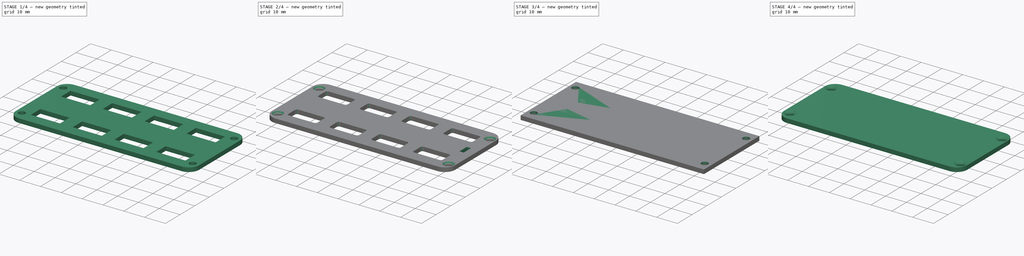
[diagram: build sequence overview — one tinted view per stage of 4, left to right]
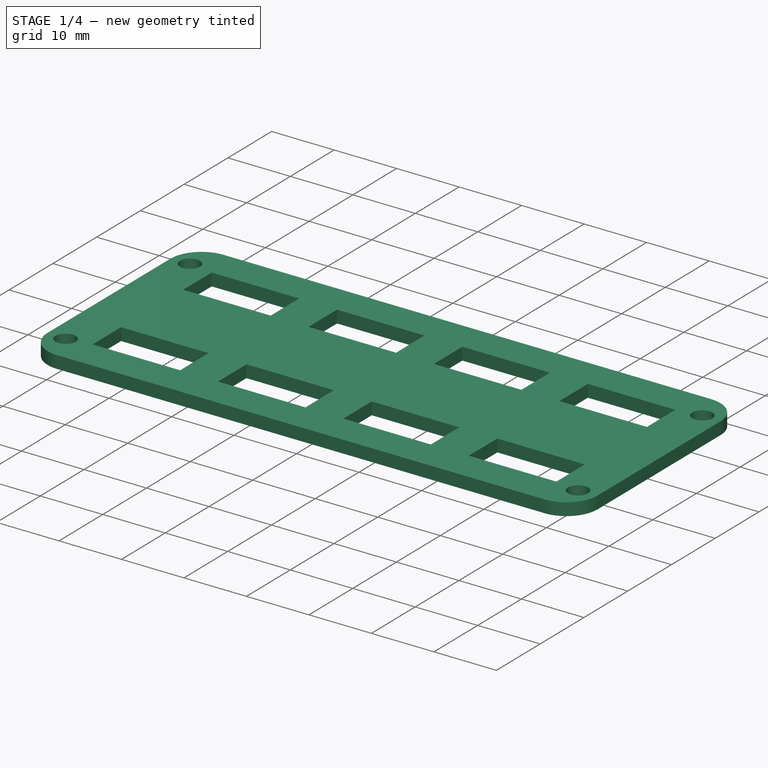
[diagram: stage 1 of 4 — iso view after this stage's code; geometry added in this stage tinted green]
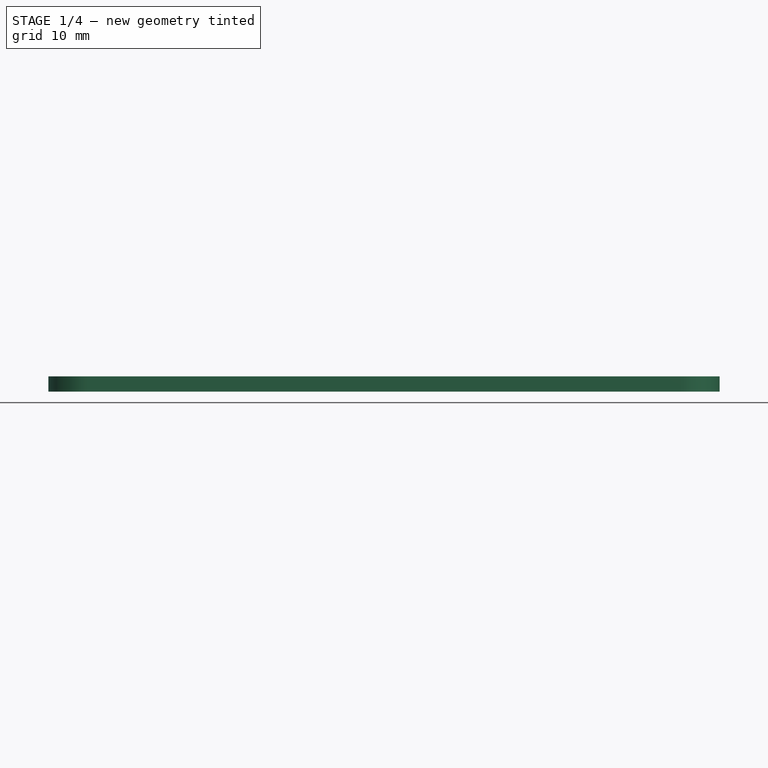
[diagram: stage 1 of 4 — front view after this stage's code; geometry added in this stage tinted green]
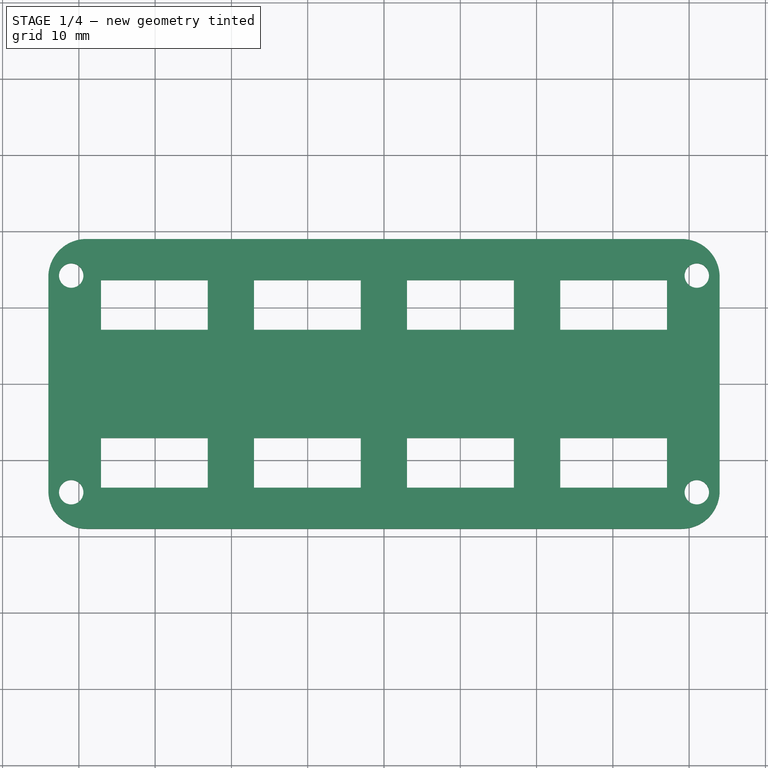
[diagram: stage 1 of 4 — top view after this stage's code; geometry added in this stage tinted green]
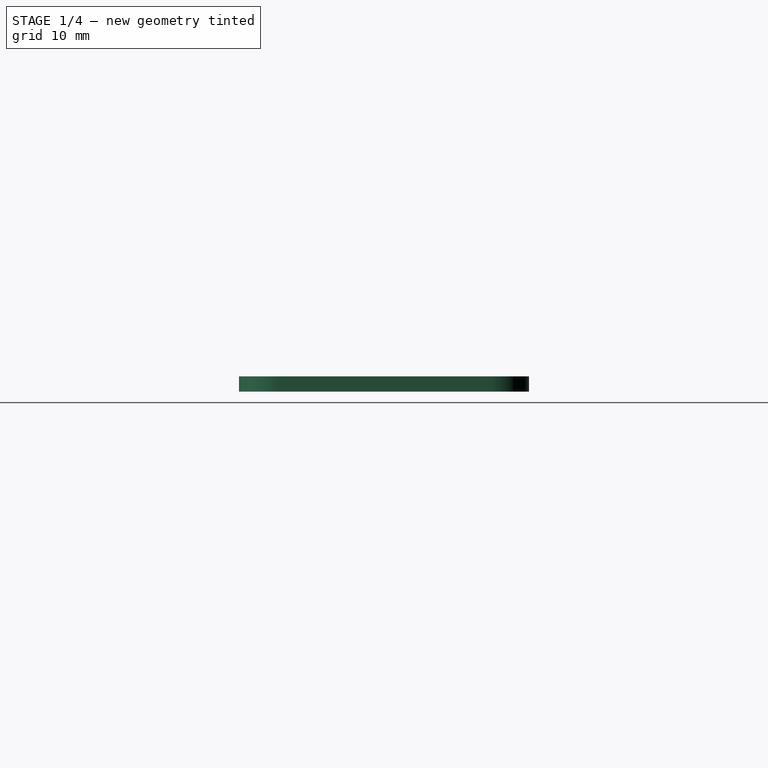
[diagram: stage 1 of 4 — right view after this stage's code; geometry added in this stage tinted green]
FCSTD DOCUMENT  (FreeCAD 0.17R13522 (Git))
Label: 开孔前
License: All rights reserved
LicenseURL: http://en.wikipedia.org/wiki/All_rights_reserved
objects: Sketcher::SketchObject×5, PartDesign::Fillet×5, PartDesign::Mirrored×4, PartDesign::Pocket×3, PartDesign::Pad×2, PartDesign::MultiTransform×2, PartDesign::Chamfer×2, PartDesign::Body×2
note: 30 computed .brp shape members not serialized (recipe doc carries the construction recipe); baked Part::Feature solids carry a one-line shape summary decoded from their .brp

FEATURE [Sketcher::SketchObject] Sketch  label="前"
  MapMode = 5
  Support = -> [XY_Plane]
  sketch-geometry (36):
    g0: LineSegment StartX=-44 StartY=19 StartZ=0 EndX=44 EndY=19 EndZ=0
    g1: LineSegment StartX=44 StartY=19 StartZ=0 EndX=44 EndY=-19 EndZ=0
    g2: LineSegment StartX=44 StartY=-19 StartZ=0 EndX=-44 EndY=-19 EndZ=0
    g3: LineSegment StartX=-44 StartY=-19 StartZ=0 EndX=-44 EndY=19 EndZ=0
    g4: LineSegment StartX=-37.1 StartY=13.6 StartZ=0 EndX=-23.1 EndY=13.6 EndZ=0
    g5: LineSegment StartX=-23.1 StartY=13.6 StartZ=0 EndX=-23.1 EndY=7.1 EndZ=0
    g6: LineSegment StartX=-23.1 StartY=7.1 StartZ=0 EndX=-37.1 EndY=7.1 EndZ=0
    g7: LineSegment StartX=-37.1 StartY=7.1 StartZ=0 EndX=-37.1 EndY=13.6 EndZ=0
    g8: LineSegment StartX=23.1 StartY=-7.1 StartZ=0 EndX=37.1 EndY=-7.1 EndZ=0
    g9: LineSegment StartX=37.1 StartY=-7.1 StartZ=0 EndX=37.1 EndY=-13.6 EndZ=0
    g10: LineSegment StartX=37.1 StartY=-13.6 StartZ=0 EndX=23.1 EndY=-13.6 EndZ=0
    g11: LineSegment StartX=23.1 StartY=-13.6 StartZ=0 EndX=23.1 EndY=-7.1 EndZ=0
    g12: LineSegment StartX=-37.1 StartY=-7.1 StartZ=0 EndX=-23.1 EndY=-7.1 EndZ=0
    g13: LineSegment StartX=-23.1 StartY=-7.1 StartZ=0 EndX=-23.1 EndY=-13.6 EndZ=0
    g14: LineSegment StartX=-23.1 StartY=-13.6 StartZ=0 EndX=-37.1 EndY=-13.6 EndZ=0
    g15: LineSegment StartX=-37.1 StartY=-13.6 StartZ=0 EndX=-37.1 EndY=-7.1 EndZ=0
    g16: LineSegment StartX=23.1 StartY=13.6 StartZ=0 EndX=37.1 EndY=13.6 EndZ=0
    g17: LineSegment StartX=37.1 StartY=13.6 StartZ=0 EndX=37.1 EndY=7.1 EndZ=0
    g18: LineSegment StartX=37.1 StartY=7.1 StartZ=0 EndX=23.1 EndY=7.1 EndZ=0
    g19: LineSegment StartX=23.1 StartY=7.1 StartZ=0 EndX=23.1 EndY=13.6 EndZ=0
    g20: LineSegment StartX=-17.04 StartY=13.6 StartZ=0 EndX=-3.04 EndY=13.6 EndZ=0
    g21: LineSegment StartX=-3.04 StartY=13.6 StartZ=0 EndX=-3.04 EndY=7.1 EndZ=0
    g22: LineSegment StartX=-3.04 StartY=7.1 StartZ=0 EndX=-17.04 EndY=7.1 EndZ=0
    g23: LineSegment StartX=-17.04 StartY=7.1 StartZ=0 EndX=-17.04 EndY=13.6 EndZ=0
    g24: LineSegment StartX=-17.04 StartY=-7.1 StartZ=0 EndX=-3.04 EndY=-7.1 EndZ=0
    g25: LineSegment StartX=-3.04 StartY=-7.1 StartZ=0 EndX=-3.04 EndY=-13.6 EndZ=0
    g26: LineSegment StartX=-3.04 StartY=-13.6 StartZ=0 EndX=-17.04 EndY=-13.6 EndZ=0
    g27: LineSegment StartX=-17.04 StartY=-13.6 StartZ=0 EndX=-17.04 EndY=-7.1 EndZ=0
    g28: LineSegment StartX=3.02 StartY=13.6 StartZ=0 EndX=17.02 EndY=13.6 EndZ=0
    g29: LineSegment StartX=17.02 StartY=13.6 StartZ=0 EndX=17.02 EndY=7.1 EndZ=0
    g30: LineSegment StartX=17.02 StartY=7.1 StartZ=0 EndX=3.02 EndY=7.1 EndZ=0
    g31: LineSegment StartX=3.02 StartY=7.1 StartZ=0 EndX=3.02 EndY=13.6 EndZ=0
    g32: LineSegment StartX=3.02 StartY=-7.1 StartZ=0 EndX=17.02 EndY=-7.1 EndZ=0
    g33: LineSegment StartX=17.02 StartY=-7.1 StartZ=0 EndX=17.02 EndY=-13.6 EndZ=0
    g34: LineSegment StartX=17.02 StartY=-13.6 StartZ=0 EndX=3.02 EndY=-13.6 EndZ=0
    g35: LineSegment StartX=3.02 StartY=-13.6 StartZ=0 EndX=3.02 EndY=-7.1 EndZ=0
  constraints (108):
    c: Coincident(g0,g1)
    c: Coincident(g1,g2)
    c: Coincident(g2,g3)
    c: Coincident(g3,g0)
    c: Horizontal(g0)
    c: Horizontal(g2)
    c: Vertical(g1)
    c: Vertical(g3)
    c: DistanceX(g0,g0) = 88
    c: DistanceY(g3,g3) = 38
    c: Coincident(g4,g5)
    c: Coincident(g5,g6)
    c: Coincident(g6,g7)
    c: Coincident(g7,g4)
    c: Horizontal(g4)
    c: Horizontal(g6)
    c: Vertical(g5)
    c: Vertical(g7)
    c: DistanceY(g7,g7) = 6.5
    c: DistanceX(g4,g4) = 14
    c: Distance(g6,g3) = 6.9
    c: Distance(g-1,g0) = 19
    c: Distance(g-1,g1) = 44
    c: Coincident(g8,g9)
    c: Coincident(g9,g10)
    c: Coincident(g10,g11)
    c: Coincident(g11,g8)
    c: Horizontal(g8)
    c: Horizontal(g10)
    c: Vertical(g9)
    c: Vertical(g11)
    c: Coincident(g12,g13)
    c: Coincident(g13,g14)
    c: Coincident(g14,g15)
    c: Coincident(g15,g12)
    c: Horizontal(g12)
    c: Horizontal(g14)
    c: Vertical(g13)
    c: Vertical(g15)
    c: Coincident(g16,g17)
    c: Coincident(g17,g18)
    c: Coincident(g18,g19)
    c: Coincident(g19,g16)
    c: Horizontal(g16)
    c: Horizontal(g18)
    c: Vertical(g17)
    c: Vertical(g19)
    c: DistanceX(g12,g12) = 14
    c: DistanceY(g15,g15) = 6.5
    c: Distance(g12,g3) = 6.9
    c: Distance(g14,g2) = 5.4
    c: Distance(g4,g0) = 5.4
    c: DistanceX(g16,g16) = 14
    c: DistanceY(g19,g19) = 6.5
    c: DistanceX(g8,g8) = 14
    c: DistanceY(g11,g11) = 6.5
    c: Distance(g9,g2) = 5.4
    c: Distance(g8,g1) = 6.9
    c: Distance(g16,g1) = 6.9
    c: Distance(g16,g0) = 5.4
    c: Coincident(g20,g21)
    c: Coincident(g21,g22)
    c: Coincident(g22,g23)
    c: Coincident(g23,g20)
    c: Horizontal(g20)
    c: Horizontal(g22)
    c: Vertical(g21)
    c: Vertical(g23)
    c: Coincident(g24,g25)
    c: Coincident(g25,g26)
    c: Coincident(g26,g27)
    c: Coincident(g27,g24)
    c: Horizontal(g24)
    c: Horizontal(g26)
    c: Vertical(g25)
    c: Vertical(g27)
    c: Coincident(g28,g29)
    c: Coincident(g29,g30)
    c: Coincident(g30,g31)
    c: Coincident(g31,g28)
    c: Horizontal(g28)
    c: Horizontal(g30)
    c: Vertical(g29)
    c: Vertical(g31)
    c: Coincident(g32,g33)
    c: Coincident(g33,g34)
    c: Coincident(g34,g35)
    c: Coincident(g35,g32)
    c: Horizontal(g32)
    c: Horizontal(g34)
    c: Vertical(g33)
    c: Vertical(g35)
    c: DistanceX(g20,g20) = 14
    c: DistanceX(g24,g24) = 14
    c: DistanceX(g28,g28) = 14
    c: DistanceX(g32,g32) = 14
    c: DistanceY(g23,g23) = 6.5
    c: DistanceY(g27,g27) = 6.5
    c: DistanceY(g31,g31) = 6.5
    c: DistanceY(g35,g35) = 6.5
    c: Distance(g20,g4) = 6.06
    c: Distance(g20,g0) = 5.4
    c: Distance(g26,g2) = 5.4
    c: Distance(g26,g13) = 6.06
    c: Distance(g28,g0) = 5.4
    c: Distance(g28,g20) = 6.06
    c: Distance(g34,g2) = 5.4
    c: Distance(g32,g24) = 6.06
FEATURE [Sketcher::SketchObject] Sketch001  label="后"
  MapMode = 5
  Support = -> [XY_Plane001]
  sketch-geometry (9):
    g0: LineSegment StartX=-44 StartY=19 StartZ=0 EndX=44 EndY=19 EndZ=0
    g1: LineSegment StartX=44 StartY=19 StartZ=0 EndX=44 EndY=-19 EndZ=0
    g2: LineSegment StartX=44 StartY=-19 StartZ=0 EndX=-44 EndY=-19 EndZ=0
    g3: LineSegment StartX=-44 StartY=-19 StartZ=0 EndX=-44 EndY=19 EndZ=0
    g4: Circle CenterX=-34 CenterY=0 CenterZ=0 NormalX=0 NormalY=0 NormalZ=1 AngleXU=0 Radius=4
    g5: LineSegment StartX=-19 StartY=6.75 StartZ=0 EndX=-10 EndY=6.75 EndZ=0
    g6: LineSegment StartX=-10 StartY=6.75 StartZ=0 EndX=-10 EndY=-6.75 EndZ=0
    g7: LineSegment StartX=-10 StartY=-6.75 StartZ=0 EndX=-19 EndY=-6.75 EndZ=0
    g8: LineSegment StartX=-19 StartY=-6.75 StartZ=0 EndX=-19 EndY=6.75 EndZ=0
  constraints (27):
    c: Coincident(g0,g1)
    c: Coincident(g1,g2)
    c: Coincident(g2,g3)
    c: Coincident(g3,g0)
    c: Horizontal(g0)
    c: Horizontal(g2)
    c: Vertical(g1)
    c: Vertical(g3)
    c: DistanceX(g0,g0) = 88
    c: DistanceY(g3,g3) = 38
    c: DistanceY(g-1,g1) = -19
    c: DistanceX(g-2,g0) = -44
    c: Coincident(g5,g6)
    c: Coincident(g6,g7)
    c: Coincident(g7,g8)
    c: Coincident(g8,g5)
    c: Horizontal(g5)
    c: Horizontal(g7)
    c: Vertical(g6)
    c: Vertical(g8)
    c: DistanceY(g8,g8) = 13.5
    c: DistanceX(g5,g5) = 9
    c: Radius(g4) = 4
    c: PointOnObject(g4,g-1)
    c: Distance(g4,g3) = 10
    c: Distance(g4,g8) = 15
    c: DistanceY(g-1,g5) = 6.75
FEATURE [PartDesign::Pad] Pad
  Length = 2
  Length2 = 100
  Profile = -> Sketch
  Type = 0
FEATURE [Sketcher::SketchObject] Sketch002
  ExternalGeometry = -> [Pad]
  MapMode = 5
  Placement = pos=(0,0,2) rot=(0,0,1;0rad)
  Support = -> [Pad]
  sketch-geometry (1):
    g0: Circle CenterX=-41 CenterY=14.2 CenterZ=0 NormalX=0 NormalY=0 NormalZ=1 AngleXU=0 Radius=1.6
  constraints (3):
    c: Radius(g0) = 1.6
    c: Distance(g0,g-4) = 3
    c: Distance(g0,g-3) = 4.8
FEATURE [PartDesign::Pocket] Pocket
  BaseFeature = -> Pad
  Length = 5
  Length2 = 100
  Profile = -> Sketch002
  Type = 1
FEATURE [PartDesign::Mirrored] Mirrored
  MirrorPlane = -> Sketch002 [V_Axis]
FEATURE [PartDesign::Mirrored] Mirrored001
  MirrorPlane = -> Sketch002 [H_Axis]
FEATURE [PartDesign::MultiTransform] MultiTransform
  BaseFeature = -> Pocket
  Originals = -> [Pocket]
  Transformations = -> [Mirrored,Mirrored001]
FEATURE [PartDesign::Fillet] Fillet
  Base = -> MultiTransform [Edge1,Edge5,Edge2,Edge8]
  BaseFeature = -> MultiTransform
  Radius = 5
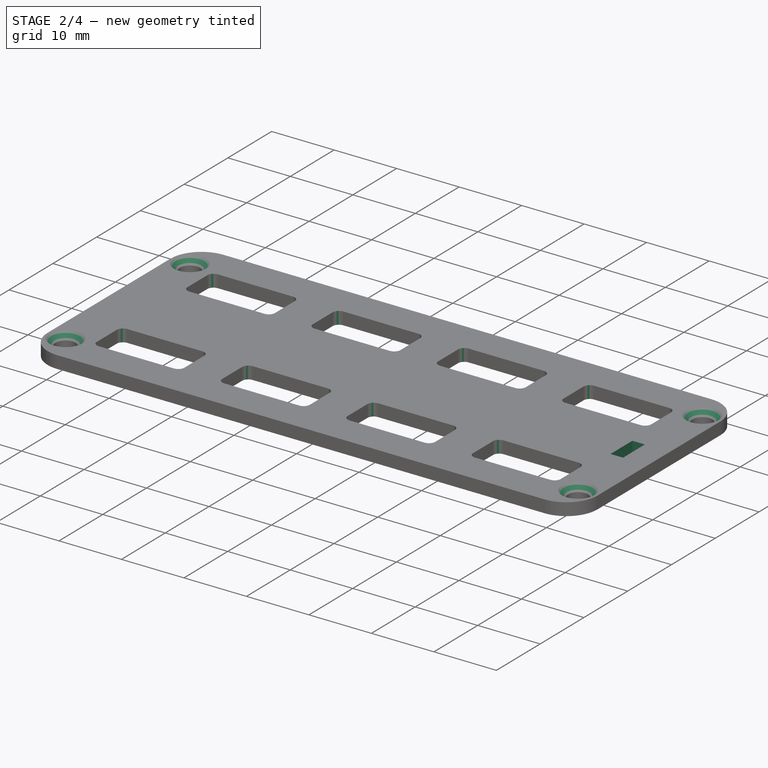
[diagram: stage 2 of 4 — iso view after this stage's code; geometry added in this stage tinted green]
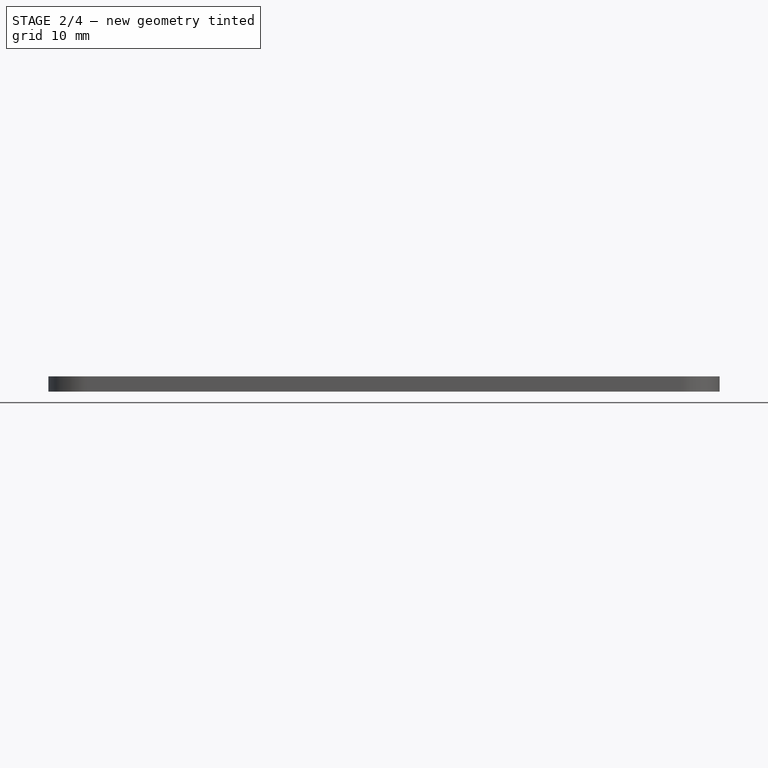
[diagram: stage 2 of 4 — front view after this stage's code; geometry added in this stage tinted green]
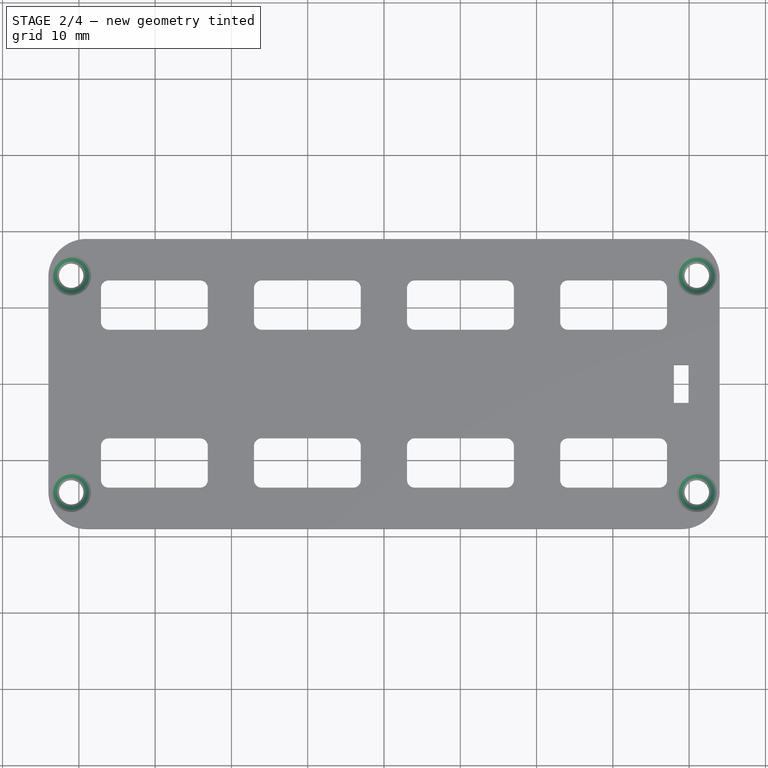
[diagram: stage 2 of 4 — top view after this stage's code; geometry added in this stage tinted green]
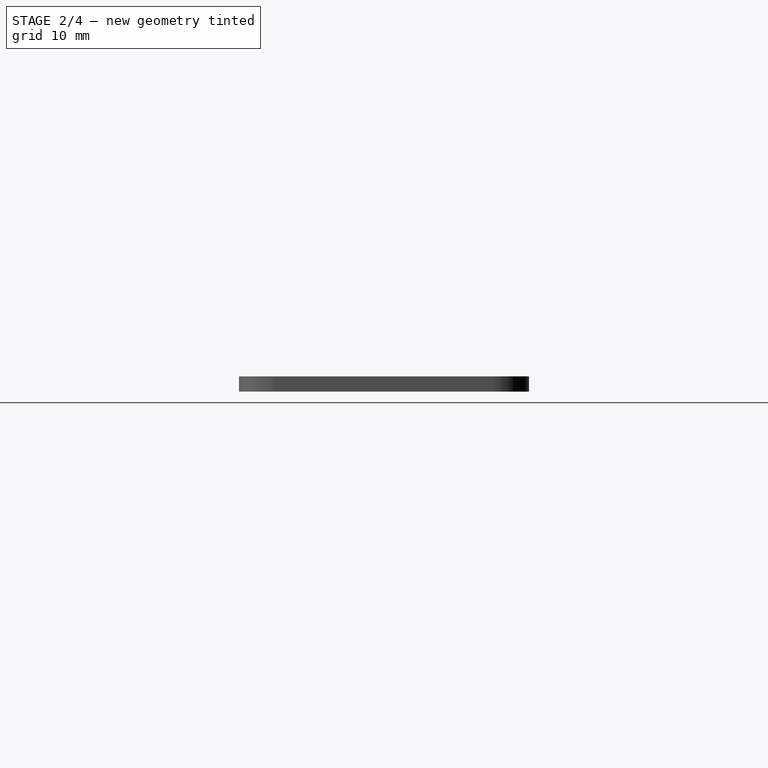
[diagram: stage 2 of 4 — right view after this stage's code; geometry added in this stage tinted green]
FEATURE [PartDesign::Chamfer] Chamfer
  Base = -> Fillet [Edge83,Edge73,Edge82,Edge92]
  BaseFeature = -> Fillet
  Size = 1
FEATURE [PartDesign::Fillet] Fillet003
  Base = -> Chamfer [Edge111,Edge120,Edge119,Edge112,Edge114,Edge116,Edge124,Edge122,Edge80,Edge79,Edge82,Edge84,Edge90,Edge92,Edge88,Edge87,Edge76,Edge72,Edge71,Edge74,Edge66,Edge68,Edge64,Edge63,Edge104,Edge103,Edge106,Edge108,Edge98,Edge100,Edge96,Edge95]
  BaseFeature = -> Chamfer
  Radius = 1
FEATURE [PartDesign::Body] Body001  label="main2"
  Group = -> [Sketch001,Pad001,Sketch003,Pocket001,MultiTransform001,Mirrored002,Mirrored003,Fillet004,Chamfer001]
  Origin = -> Origin001
  Tip = -> Chamfer001
FEATURE [Sketcher::SketchObject] Sketch004
  ExternalGeometry = -> [MultiTransform]
  MapMode = 5
  Placement = pos=(0,0,2) rot=(0,0,1;0rad)
  Support = -> [MultiTransform]
  sketch-geometry (4):
    g0: LineSegment StartX=38 StartY=2.5 StartZ=0 EndX=40 EndY=2.5 EndZ=0
    g1: LineSegment StartX=40 StartY=2.5 StartZ=0 EndX=40 EndY=-2.5 EndZ=0
    g2: LineSegment StartX=40 StartY=-2.5 StartZ=0 EndX=38 EndY=-2.5 EndZ=0
    g3: LineSegment StartX=38 StartY=-2.5 StartZ=0 EndX=38 EndY=2.5 EndZ=0
  constraints (12):
    c: Coincident(g0,g1)
    c: Coincident(g1,g2)
    c: Coincident(g2,g3)
    c: Coincident(g3,g0)
    c: Horizontal(g0)
    c: Horizontal(g2)
    c: Vertical(g1)
    c: Vertical(g3)
    c: DistanceY(g3,g3) = 5
    c: DistanceX(g0,g0) = 2
    c: DistanceY(g-1,g0) = 2.5
    c: Distance(g0,g-3) = 4
FEATURE [PartDesign::Pocket] Pocket002
  BaseFeature = -> Fillet003
  Length = 5
  Length2 = 100
  Profile = -> Sketch004
  Type = 1
FEATURE [PartDesign::Body] Body  label="main1"
  Group = -> [Sketch,Pad,Sketch002,Pocket,MultiTransform,Mirrored,Mirrored001,Fillet,Fillet001,Fillet002,Chamfer,Fillet003,Sketch004,Pocket002]
  Origin = -> Origin
  Tip = -> Pocket002
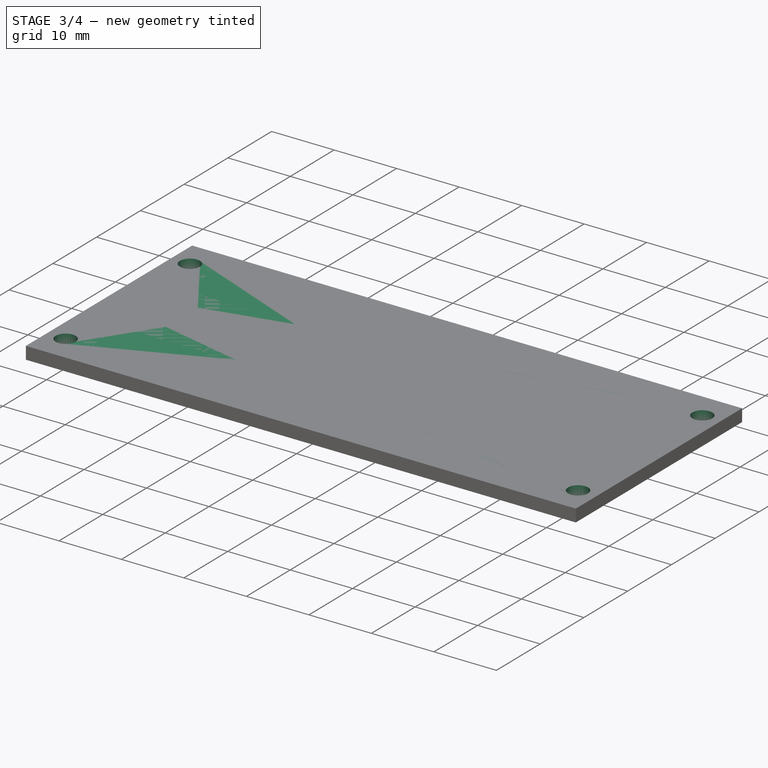
[diagram: stage 3 of 4 — iso view after this stage's code; geometry added in this stage tinted green]
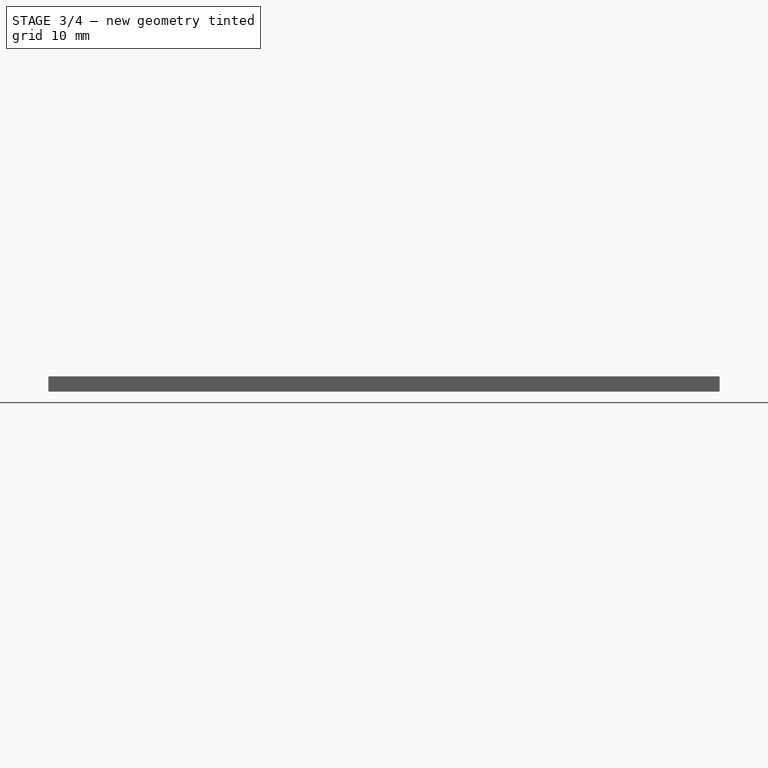
[diagram: stage 3 of 4 — front view after this stage's code; geometry added in this stage tinted green]
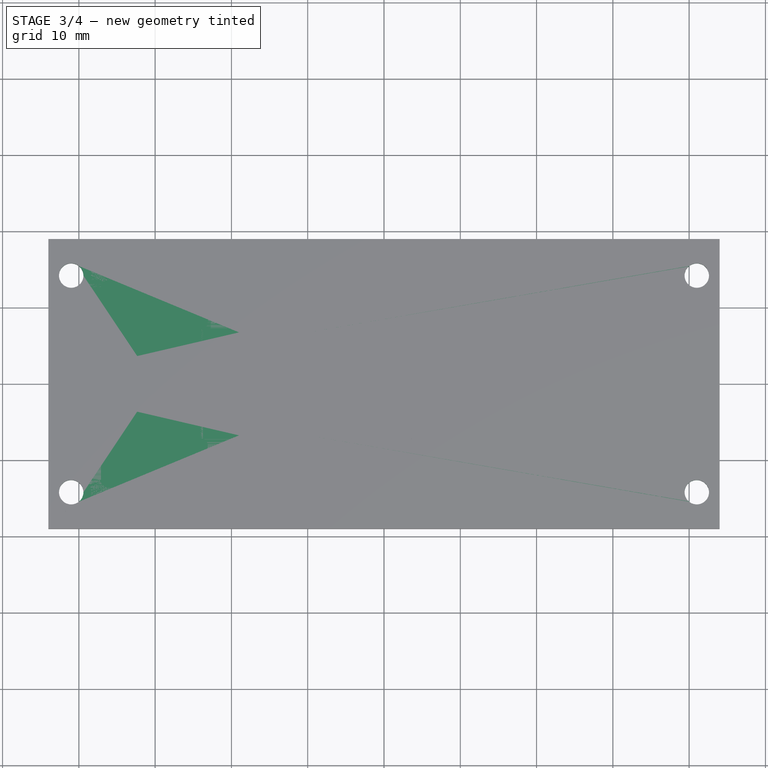
[diagram: stage 3 of 4 — top view after this stage's code; geometry added in this stage tinted green]
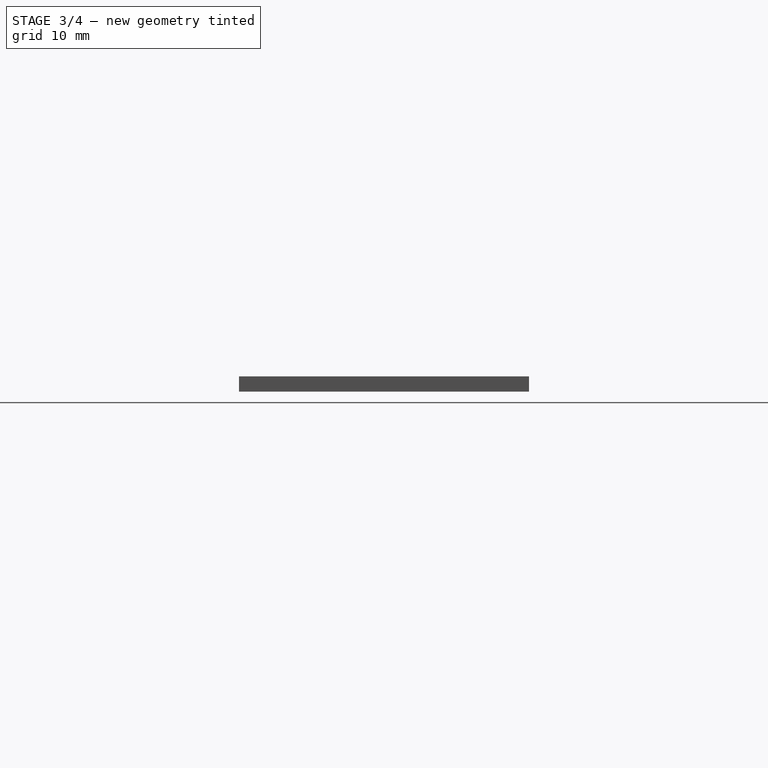
[diagram: stage 3 of 4 — right view after this stage's code; geometry added in this stage tinted green]
FEATURE [PartDesign::Pad] Pad001
  Length = 2
  Length2 = 100
  Profile = -> Sketch001
  Type = 0
FEATURE [Sketcher::SketchObject] Sketch003
  ExternalGeometry = -> [Pad001]
  MapMode = 5
  Placement = pos=(0,0,2) rot=(0,0,1;0rad)
  Support = -> [Pad001]
  sketch-geometry (1):
    g0: Circle CenterX=-41 CenterY=14.2 CenterZ=0 NormalX=0 NormalY=0 NormalZ=1 AngleXU=0 Radius=1.6
  constraints (3):
    c: Radius(g0) = 1.6
    c: Distance(g0,g-3) = 4.8
    c: Distance(g0,g-4) = 3
FEATURE [PartDesign::Pocket] Pocket001
  BaseFeature = -> Pad001
  Length = 5
  Length2 = 100
  Profile = -> Sketch003
  Type = 1
FEATURE [PartDesign::Mirrored] Mirrored002
  MirrorPlane = -> Sketch003 [V_Axis]
FEATURE [PartDesign::Mirrored] Mirrored003
  MirrorPlane = -> Sketch003 [H_Axis]
FEATURE [PartDesign::MultiTransform] MultiTransform001
  BaseFeature = -> Pocket001
  Originals = -> [Pocket001]
  Transformations = -> [Mirrored002,Mirrored003]
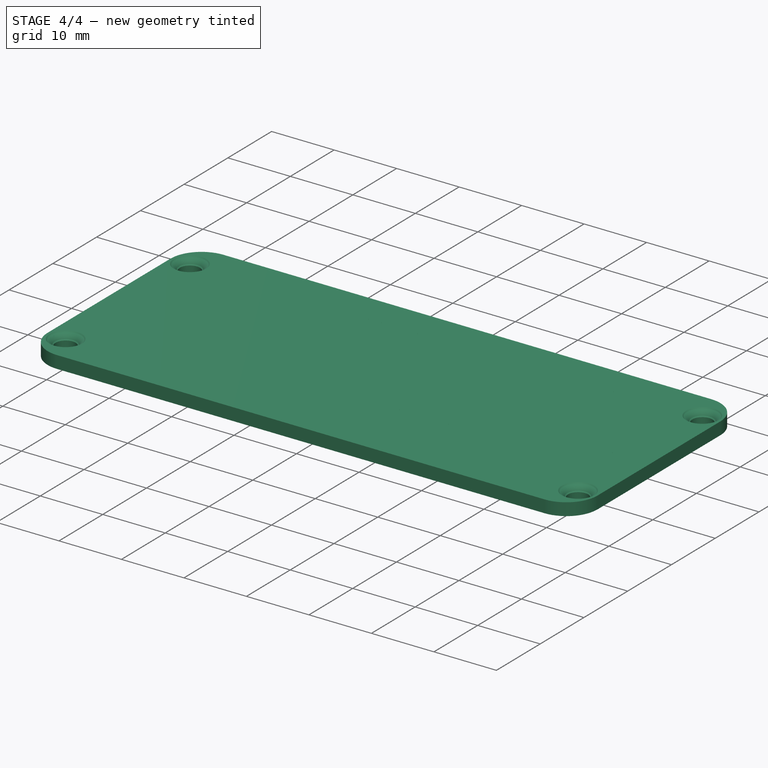
[diagram: stage 4 of 4 — iso view after this stage's code; geometry added in this stage tinted green]
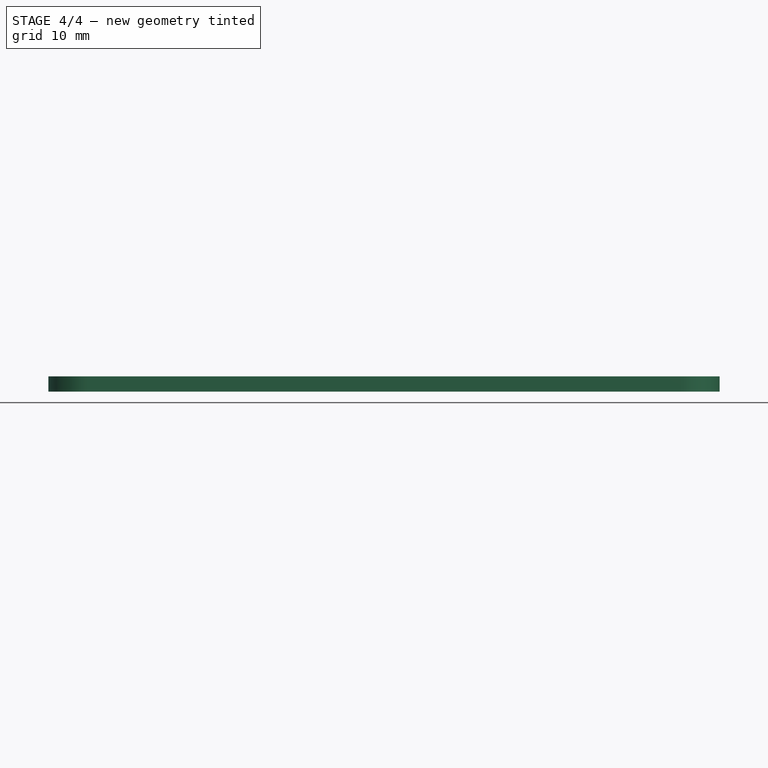
[diagram: stage 4 of 4 — front view after this stage's code; geometry added in this stage tinted green]
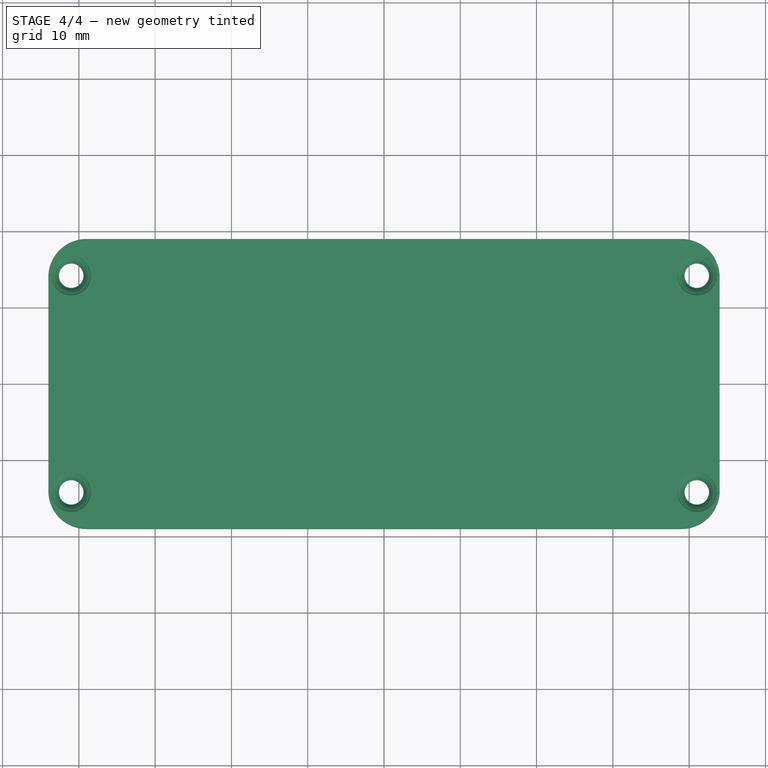
[diagram: stage 4 of 4 — top view after this stage's code; geometry added in this stage tinted green]
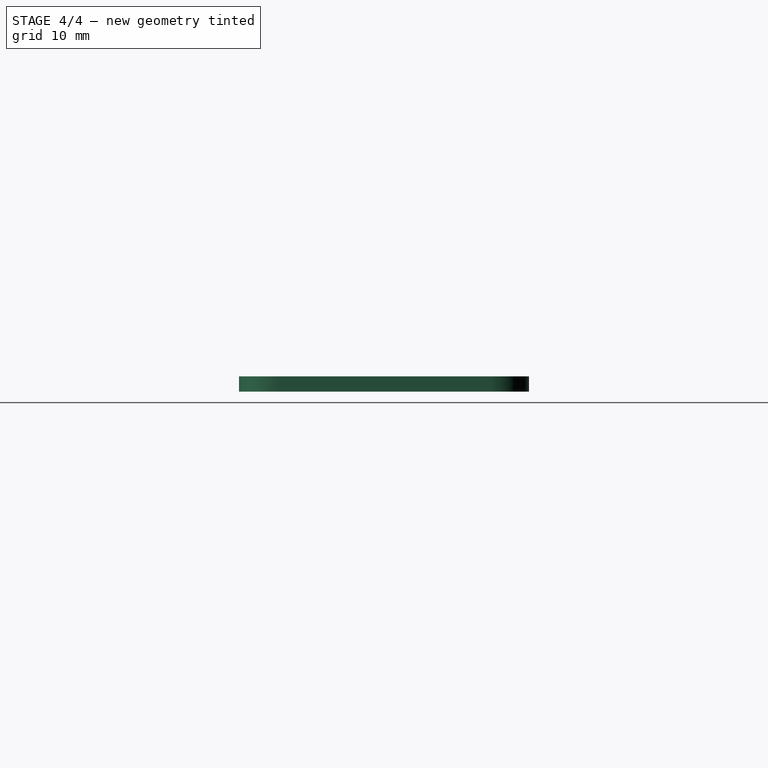
[diagram: stage 4 of 4 — right view after this stage's code; geometry added in this stage tinted green]
FEATURE [PartDesign::Fillet] Fillet001
  Base = -> Fillet [Edge92,Edge83,Edge73,Edge82]
  BaseFeature = -> Fillet
  Radius = 1.5
FEATURE [PartDesign::Fillet] Fillet002
  Base = -> Fillet001 [Edge158,Edge146,Edge134,Edge150,Edge154,Edge138,Edge142,Edge162,Edge156,Edge160,Edge140,Edge144,Edge132,Edge136,Edge152,Edge148,Edge147,Edge151,Edge135,Edge131,Edge143,Edge139,Edge159,Edge155,Edge145,Edge141,Edge157,Edge161,Edge133,Edge137,Edge153,Edge149]
  BaseFeature = -> Fillet001
  Radius = 1
FEATURE [PartDesign::Fillet] Fillet004
  Base = -> MultiTransform001 [Edge1,Edge5,Edge2,Edge8]
  BaseFeature = -> MultiTransform001
  Radius = 5
FEATURE [PartDesign::Chamfer] Chamfer001
  Base = -> Fillet004 [Edge37,Edge36,Edge35,Edge38]
  BaseFeature = -> Fillet004
  Size = 1
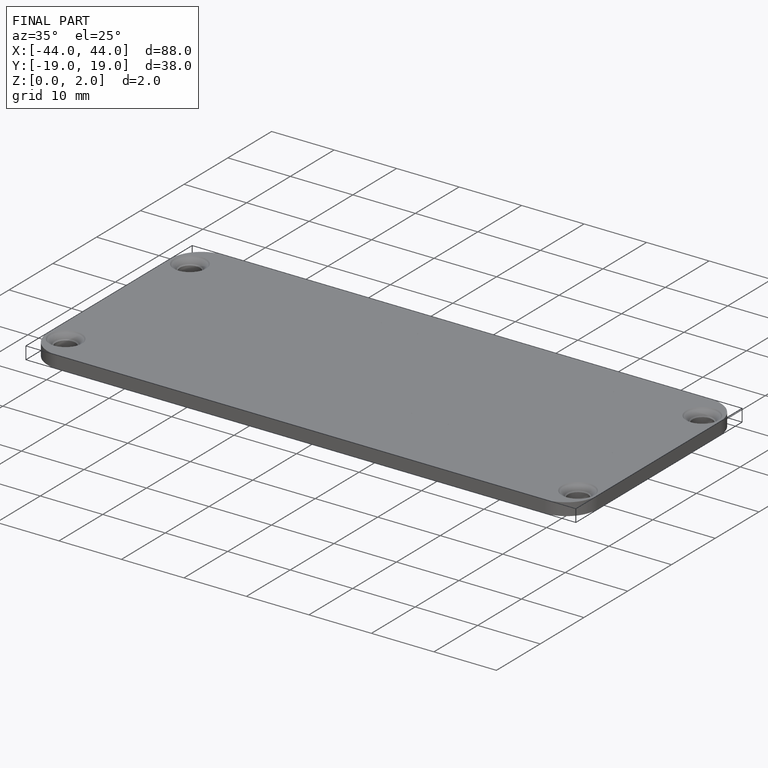
[diagram: finished part — iso view with bounding-box wireframe]
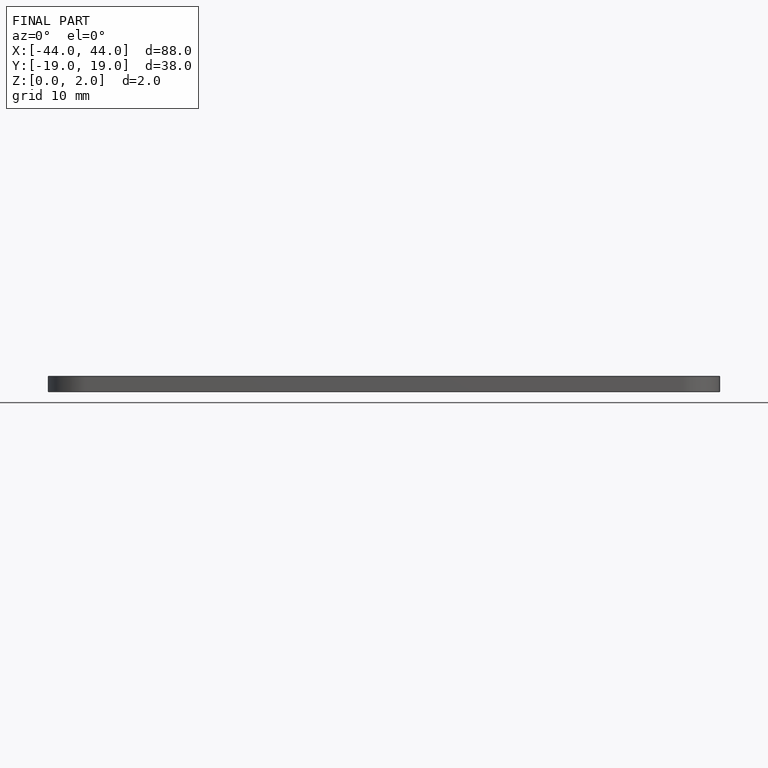
[diagram: finished part — front view with bounding-box wireframe]
